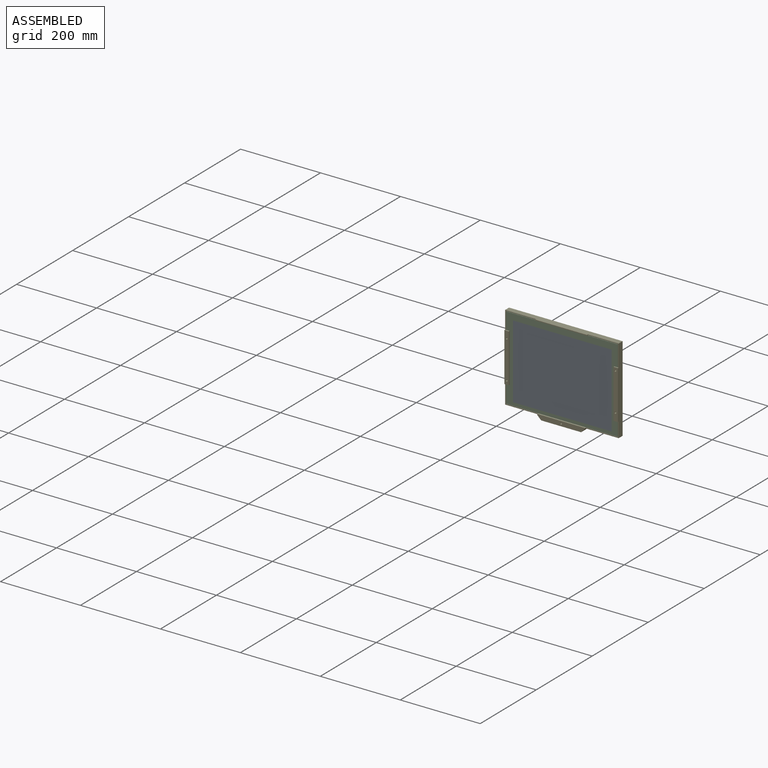
[diagram: assembled view]
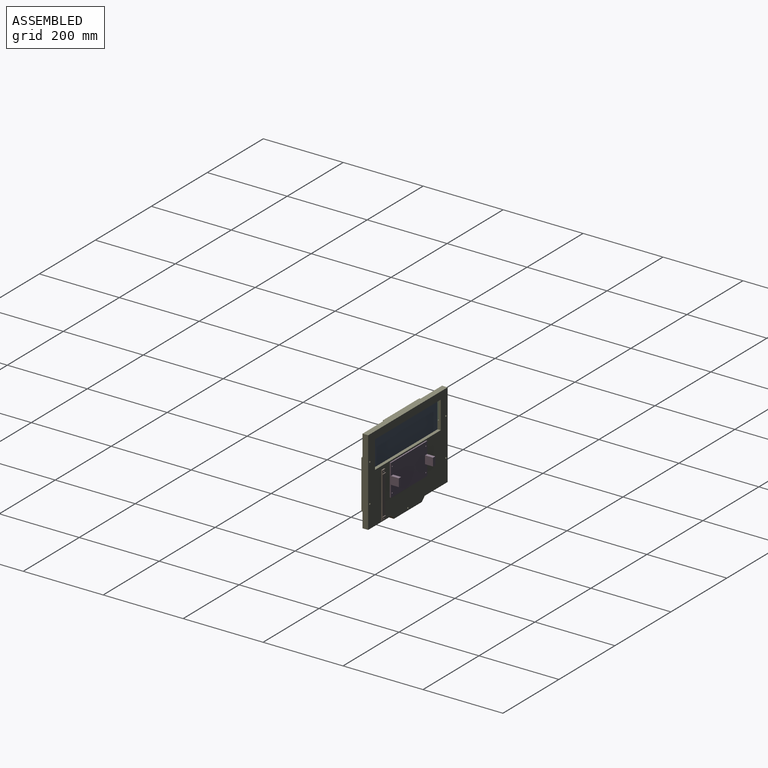
[diagram: assembled view, second angle]
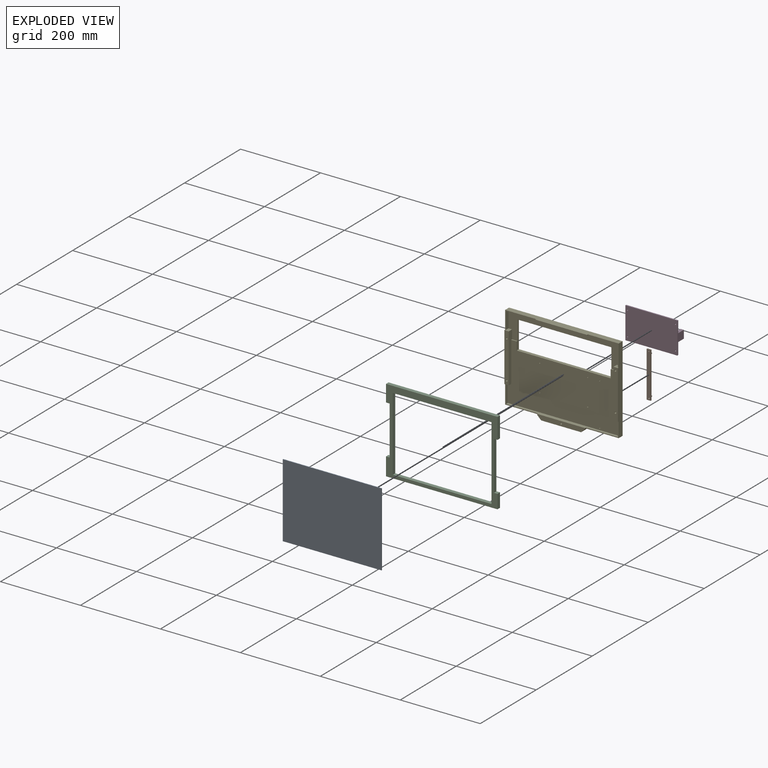
[diagram: exploded view]
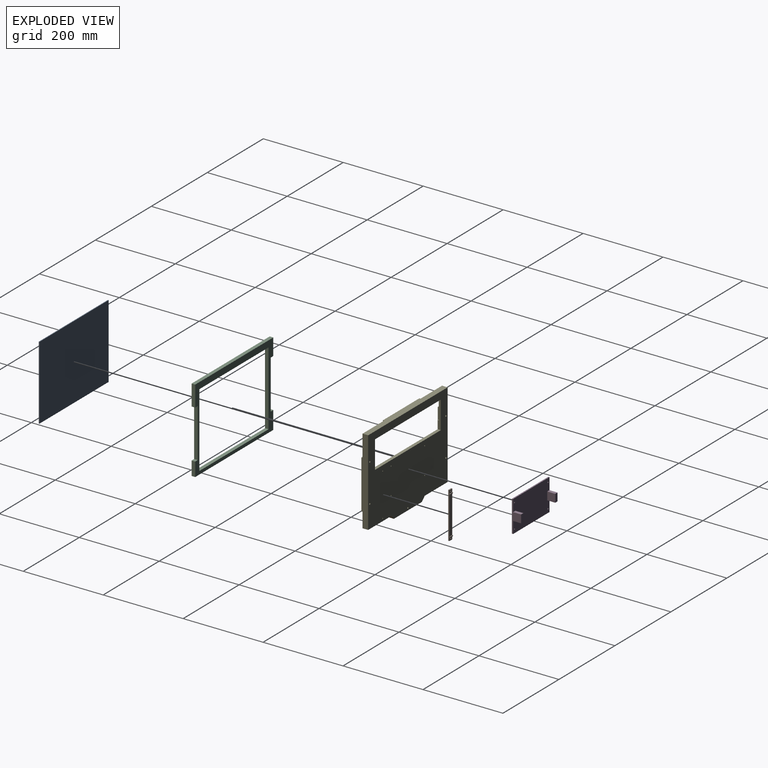
[diagram: exploded view, second angle]
ASSEMBLY  parts=5 mates=3
PART A: 6 faces, bbox 247x185x2 mm
  f0: plane 247x2mm, normal (0,1,0), area 494mm2, adj f1,f3,f4,f5
  f1: plane 185x2mm, normal (-1,0,0), area 370mm2, adj f0,f2,f4,f5
  f2: plane 247x2mm, normal (0,-1,0), area 494mm2, adj f1,f3,f4,f5
  f3: plane 185x2mm, normal (1,0,0), area 370mm2, adj f0,f2,f4,f5
  f4: plane 247x185mm, normal (0,0,-1), area 45695mm2, adj f0,f1,f2,f3
  f5: plane 247x185mm, normal (0,0,1), area 45695mm2, adj f0,f1,f2,f3
PART B: 16 faces, bbox 10x115x5 mm
  f0: plane 95x10mm, normal (0,0,1), area 950mm2, adj f2,f4,f11,f14
  f1: plane 10x8mm, normal (0,0,1), area 72.9mm2, adj f2,f4,f5,f6,f10
  f2: plane 115x5mm, normal (-1,0,0), area 353mm2, adj f0,f1,f3,f6,f8,f9,f10,f11
  f3: plane 10x3mm, normal (0,-1,0), area 30mm2, adj f2,f4,f8,f9
  f4: plane 115x5mm, normal (1,0,0), area 353mm2, adj f0,f1,f3,f6,f8,f9,f10,f11
  f5: cylinder r=1.5mm len=3mm, axis (0,0,-1), area 28.3mm2, adj f1,f9
  f6: plane 10x3mm, normal (0,1,0), area 30mm2, adj f1,f2,f4,f9
  f7: cylinder r=1.5mm len=3mm, axis (0,0,-1), area 28.3mm2, adj f8,f9
  f8: plane 10x8mm, normal (0,0,1), area 72.9mm2, adj f2,f3,f4,f7,f13
  f9: plane 115x10mm, normal (0,0,-1), area 1135.9mm2, adj f2,f3,f4,f5,f6,f7
  f10: plane 10x2mm, normal (0,1,0), area 20mm2, adj f1,f2,f4,f12
  f11: plane 10x2mm, normal (0,-1,0), area 20mm2, adj f0,f2,f4,f12
  f12: plane 10x2mm, normal (0,0,1), area 20mm2, adj f2,f4,f10,f11
  f13: plane 10x2mm, normal (0,-1,0), area 20mm2, adj f2,f4,f8,f15
  f14: plane 10x2mm, normal (0,1,0), area 20mm2, adj f0,f2,f4,f15
  f15: plane 10x2mm, normal (0,0,1), area 20mm2, adj f2,f4,f13,f14
PART C: 18 faces, bbox 279x209x9 mm
  f0: plane 52x9mm, normal (1,0,0), area 468mm2, adj f2,f3,f6,f12
  f1: plane 42x9mm, normal (-1,0,0), area 378mm2, adj f2,f3,f6,f15
  f2: plane 279x209mm, normal (0,0,1), area 10420mm2, adj f0,f1,f4,f5,f6,f7,f8,f9
  f3: plane 279x209mm, normal (0,0,-1), area 10420mm2, adj f0,f1,f4,f5,f6,f7,f8,f9
  f4: plane 279x9mm, normal (0,-1,0), area 2511mm2, adj f2,f3,f5,f11
  f5: plane 35x9mm, normal (1,0,0), area 315mm2, adj f2,f3,f4,f14
  f6: plane 279x9mm, normal (0,1,0), area 2511mm2, adj f0,f1,f2,f3
  f7: plane 185x9mm, normal (1,0,0), area 1665mm2, adj f2,f3,f8,f10
  f8: plane 247x9mm, normal (0,-1,0), area 2223mm2, adj f2,f3,f7,f9
  f9: plane 185x9mm, normal (-1,0,0), area 1665mm2, adj f2,f3,f8,f10
  f10: plane 247x9mm, normal (0,1,0), area 2223mm2, adj f2,f3,f7,f9
  f11: plane 45x9mm, normal (-1,0,0), area 405mm2, adj f2,f3,f4,f16
  f12: plane 9x9mm, normal (0,-1,0), area 81mm2, adj f0,f2,f3,f13
  f13: plane 122x9mm, normal (1,0,0), area 1098mm2, adj f2,f3,f12,f14
  f14: plane 9x9mm, normal (0,1,0), area 81mm2, adj f2,f3,f5,f13
  f15: plane 9x9mm, normal (0,-1,0), area 81mm2, adj f1,f2,f3,f17
  f16: plane 9x9mm, normal (0,1,0), area 81mm2, adj f2,f3,f11,f17
  f17: plane 122x9mm, normal (-1,0,0), area 1098mm2, adj f2,f3,f15,f16
PART D: 18 faces, bbox 130x79x23 mm
  f0: plane 130x79mm, normal (0,0,1), area 9921.7mm2, adj f1,f2,f3,f4,f5,f6,f7,f8
  f1: plane 130x3mm, normal (0,1,0), area 390mm2, adj f0,f2,f7,f9
  f2: plane 79x23mm, normal (-1,0,0), area 637mm2, adj f0,f1,f3,f9,f10,f11,f13
  f3: plane 130x3mm, normal (0,-1,0), area 390mm2, adj f0,f2,f7,f9
  f4: cylinder r=1.5mm len=3mm, axis (0,0,-1), area 28.3mm2, adj f0,f9
  f5: cylinder r=1.5mm len=3mm, axis (0,0,-1), area 28.3mm2, adj f0,f9
  f6: cylinder r=1.5mm len=3mm, axis (0,0,-1), area 28.3mm2, adj f0,f9
  f7: plane 79x23mm, normal (1,0,0), area 637mm2, adj f0,f1,f3,f9,f14,f16,f17
  f8: cylinder r=1.5mm len=3mm, axis (0,0,-1), area 28.3mm2, adj f0,f9
  f9: plane 130x79mm, normal (0,0,-1), area 10241.7mm2, adj f1,f2,f3,f4,f5,f6,f7,f8
  f10: plane 20x8mm, normal (0,1,0), area 160mm2, adj f0,f2,f12,f13
  f11: plane 20x8mm, normal (0,-1,0), area 160mm2, adj f0,f2,f12,f13
  f12: plane 20x20mm, normal (1,0,0), area 400mm2, adj f0,f10,f11,f13
  f13: plane 20x8mm, normal (0,0,1), area 160mm2, adj f2,f10,f11,f12
  f14: plane 20x8mm, normal (0,1,0), area 160mm2, adj f0,f7,f15,f17
  f15: plane 20x20mm, normal (-1,0,0), area 400mm2, adj f0,f14,f16,f17
  f16: plane 20x8mm, normal (0,-1,0), area 160mm2, adj f0,f7,f15,f17
  f17: plane 20x8mm, normal (0,0,1), area 160mm2, adj f7,f14,f15,f16
PART E: 52 faces, bbox 284x224x17 mm
  f0: plane 284x224mm, normal (0,0,-1), area 45567.8mm2, adj f19,f20,f21,f22,f23,f24,f25,f26
  f1: plane 82x47.5mm, normal (0,0,1), area 255mm2, adj f12,f17,f18,f23,f24,f45
  f2: plane 77x54.5mm, normal (0,0,1), area 259mm2, adj f8,f9,f16,f21,f22,f42
  f3: plane 77x44.5mm, normal (0,0,1), area 239mm2, adj f14,f15,f16,f22,f23,f41
  f4: plane 280x145mm, normal (0,0,1), area 33874.4mm2, adj f6,f7,f10,f11,f12,f13,f17,f18
  f5: plane 280x65mm, normal (0,0,1), area 6487.5mm2, adj f6,f8,f9,f10,f13,f14,f15,f16
  f6: plane 13.5x2.9mm, normal (0,1,0), area 39.2mm2, adj f4,f5,f13,f31
  f7: plane 35.5x6.1mm, normal (-1,0,0), area 216.5mm2, adj f4,f11,f17,f27
  f8: plane 52.5x9mm, normal (-1,0,0), area 472.5mm2, adj f2,f5,f9,f16
  f9: plane 12x11mm, normal (0,1,0), area 114mm2, adj f2,f5,f8,f10,f21,f40
  f10: plane 122x12mm, normal (-1,0,0), area 1146.5mm2, adj f4,f5,f9,f11,f28,f40
  f11: plane 11x9.1mm, normal (0,-1,0), area 87.9mm2, adj f4,f7,f10,f21,f27,f40
  f12: plane 11x9.1mm, normal (0,-1,0), area 87.9mm2, adj f1,f4,f13,f18,f23,f39
  f13: plane 122x12mm, normal (1,0,0), area 1175.4mm2, adj f4,f5,f6,f12,f14,f39
  f14: plane 12x11mm, normal (0,1,0), area 114mm2, adj f3,f5,f13,f15,f23,f39
  f15: plane 42.5x9mm, normal (1,0,0), area 382.5mm2, adj f3,f5,f14,f16
  f16: plane 280x12mm, normal (0,-1,0), area 2910mm2, adj f2,f3,f5,f8,f15,f41,f42,f43
  f17: plane 280x9.1mm, normal (0,1,0), area 2068mm2, adj f1,f4,f7,f18,f27,f44,f45,f46
  f18: plane 45.5x6.1mm, normal (1,0,0), area 277.6mm2, adj f1,f4,f12,f17
  f19: plane 17x10mm, normal (0.71,-0.71,0), area 240.4mm2, adj f0,f20,f26,f44,f46
  f20: plane 82x14mm, normal (0,-1,0), area 1148mm2, adj f0,f19,f21,f27
  f21: plane 214x17mm, normal (1,0,0), area 3362mm2, adj f0,f2,f9,f11,f20,f22,f27,f40
  f22: plane 284x17mm, normal (0,1,0), area 4366mm2, adj f0,f2,f3,f21,f23,f41,f42,f43
  f23: plane 214x17mm, normal (-1,0,0), area 3362mm2, adj f0,f1,f3,f12,f14,f22,f24,f39
  f24: plane 82x14mm, normal (0,-1,0), area 1148mm2, adj f0,f1,f23,f25
  f25: plane 17x10mm, normal (-0.71,-0.71,0), area 240.4mm2, adj f0,f24,f26,f45,f46
  f26: plane 100x17mm, normal (0,-1,0), area 1700mm2, adj f0,f19,f25,f46
  f27: plane 82x37.5mm, normal (0,0,1), area 235mm2, adj f7,f11,f17,f20,f21,f44
  f28: plane 13.5x2.9mm, normal (0,1,0), area 39.2mm2, adj f4,f5,f10,f32
  f29: plane 235x5mm, normal (0,-1,0), area 1175mm2, adj f0,f5,f31,f32
  f30: plane 235x7.9mm, normal (0,1,0), area 1856.5mm2, adj f0,f4,f31,f32
  f31: plane 69x7.9mm, normal (1,0,0), area 404.5mm2, adj f0,f4,f5,f6,f29,f30
  f32: plane 69x7.9mm, normal (-1,0,0), area 404.5mm2, adj f0,f4,f5,f28,f29,f30
  f33: cylinder r=1.2mm len=7.9mm, axis (0,0,-1), area 59.6mm2, adj f0,f4
  f34: cylinder r=1.2mm len=7.9mm, axis (0,0,-1), area 59.6mm2, adj f0,f4
  f35: cylinder r=1.2mm len=7.9mm, axis (0,0,-1), area 59.6mm2, adj f0,f4
  f36: cylinder r=1.2mm len=7.9mm, axis (0,0,-1), area 59.6mm2, adj f0,f4
  f37: cylinder r=1.2mm len=7.9mm, axis (0,0,-1), area 59.6mm2, adj f0,f4
  f38: cylinder r=1.2mm len=7.9mm, axis (0,0,-1), area 59.6mm2, adj f0,f4
  f39: plane 122x11mm, normal (0,0,1), area 1315.6mm2, adj f12,f13,f14,f23,f50,f51
  f40: plane 122x11mm, normal (0,0,1), area 1315.6mm2, adj f9,f10,f11,f21,f48,f49
  f41: plane 3x2mm, normal (-1,0,0), area 6mm2, adj f3,f16,f22,f43
  f42: plane 3x2mm, normal (1,0,0), area 6mm2, adj f2,f16,f22,f43
  f43: plane 130x2mm, normal (0,0,1), area 260mm2, adj f16,f22,f41,f42
  f44: plane 3x2mm, normal (1,0,0), area 6mm2, adj f17,f19,f27,f46
  f45: plane 3x2mm, normal (-1,0,0), area 6mm2, adj f1,f17,f25,f46
  f46: plane 120x12mm, normal (0,0,1), area 1326.8mm2, adj f17,f19,f25,f26,f44,f45,f47
  f47: cylinder r=2.05mm len=17mm, axis (0,0,1), area 219mm2, adj f0,f46
  f48: cylinder r=2.05mm len=17mm, axis (0,0,1), area 219mm2, adj f0,f40
  f49: cylinder r=2.05mm len=17mm, axis (0,0,1), area 219mm2, adj f0,f40
  f50: cylinder r=2.05mm len=17mm, axis (0,0,1), area 219mm2, adj f0,f39
  f51: cylinder r=2.05mm len=17mm, axis (0,0,1), area 219mm2, adj f0,f39
PLACE A rot(axis=(1,0,0),90deg) t=(-84.28,78.25,-61.54)mm
PLACE B rot(axis=(0,-0.71,-0.71),180deg) t=(-118.53,83.25,-108.54)mm
PLACE C rot(axis=(1,0,0),90deg) t=(-84.28,78.25,-61.54)mm
PLACE D rot(axis=(-1,0,0),90deg) t=(-84.28,83.25,-85.04)mm
PLACE E rot(axis=(1,0,0),90deg) t=(-84.28,78.25,-61.54)mm
MATE fastened D.f8 <-> E.f34  axis (0,-1,0) through (-144.28,83.25,-55.04)mm
MATE fastened A.f5 <-> C.f2  axis (0,-1,0) through (-206.78,69.25,26.96)mm
MATE fastened B.f5 <-> E.f33  axis (0,-1,0) through (5.72,83.25,-55.04)mm
